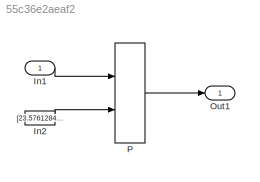
MODEL slx_55c36e2aeaf2
KIND model
CONFIG AbsTol = auto
CONFIG EnableMultiTasking = off
CONFIG FixedStep = auto
CONFIG MaxStep = auto
CONFIG MinStep = auto
CONFIG RelTol = 1e-3
CONFIG SampleTimeConstraint = Unconstrained
CONFIG Solver = FixedStepDiscrete
CONFIG SolverName = FixedStepDiscrete
CONFIG StartTime = 0.0
CONFIG StopTime = 10.0
BLOCK [Inport] In1
  IconDisplay = Port number
  OutDataTypeStr = single
  PortDimensions = [2,3]
BLOCK [Constant] In2
  Value = [23.5761284182283 25.0761284182283 26.5761284182283 28.0761284182283 29.5761284182283 31.0761284182283 32.5761284182283 34.0761284182283 35.5761284182283 37.0761284182283 38.5761284182283 40.0761284182283 41.5761284182283 43.0761284182283 44.5761284182283 46.0761284182283 47.5761284182283 49.0761284182283 50.5761284182283 52.0761284182283 53.5761284182283 55.0761284182283 56.5761284182283 58.07612...<+400ch>
BLOCK [Outport] Out1
  IconDisplay = Port number
BLOCK [PreLookup] P
  BreakpointDataTypeStr = uint32
  BreakpointsData = [10:10:110]
  BreakpointsDataSource = Input port
  InitFcn = elems(1) = Simulink.BusElement;\nelems(1).Name = 'Index';\nelems(1).DataType = 'int8';\nelems(2) = Simulink.BusElement;\nelems(2).Name = 'Fraction';\nelems(2).DataType = 'double';\nkfBus = Simulink.Bus;\nkfBus.Elements = elems;\nclear elems;\nassignin('base', 'kfBus', kfBus);
  InputPortMap = u0,p1
  OutputBusDataTypeStr = Bus: kfBus
  OutputSelection = Index and fraction as bus
  Ports = [2, 1]
  RndMeth = Simplest
  UseLastBreakpoint = on
LINE In1:1 -> P:1
LINE In2:1 -> P:2
LINE P:1 -> Out1:1
